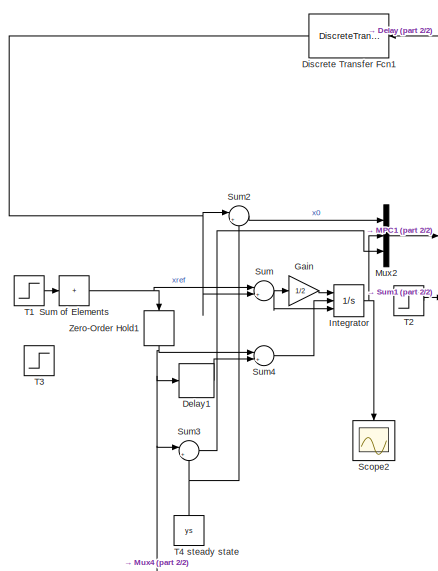
[diagram: root canvas - part 1/2, left side, full height]
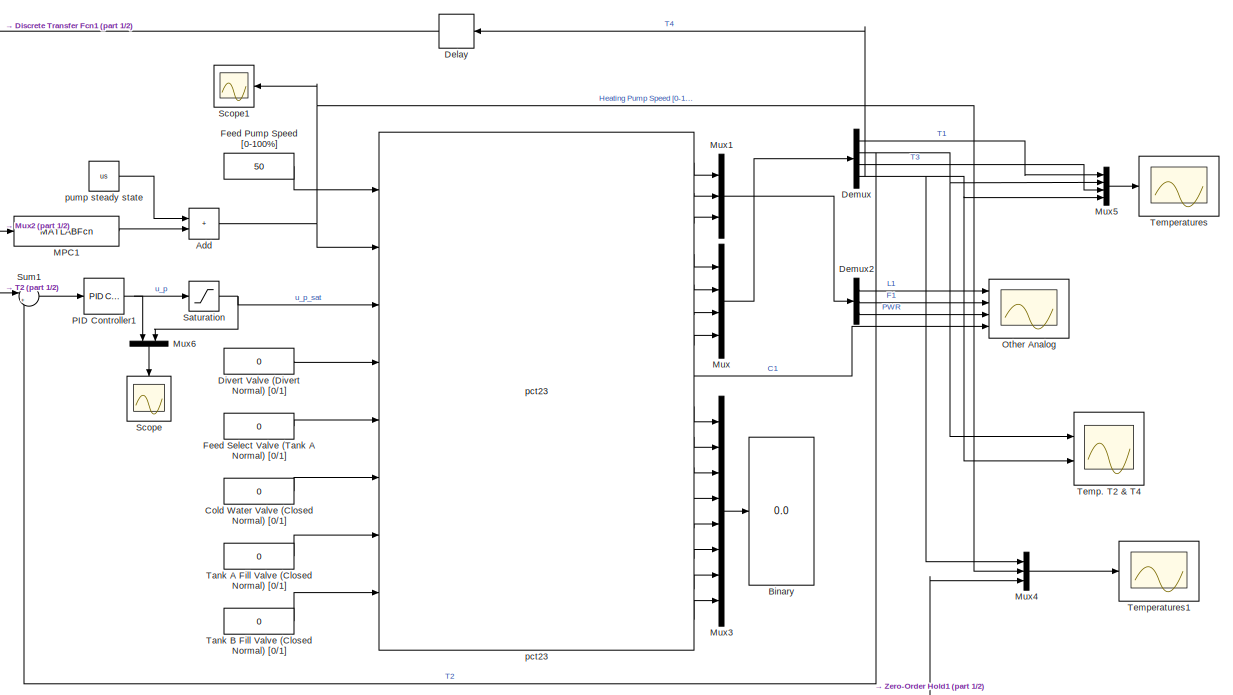
[diagram: root canvas - part 2/2, most of the canvas]
MODEL slx_e0ca52877821
KIND model
CONFIG AbsTol = auto
CONFIG EnableMultiTasking = off
CONFIG FixedStep = Ts
CONFIG MaxStep = auto
CONFIG MinStep = auto
CONFIG RelTol = 1e-3
CONFIG SampleTimeConstraint = Unconstrained
CONFIG SolverName = ode4
CONFIG StartTime = 0.0
CONFIG StopTime = 6000
BLOCK [Sum] Add
  IconShape = rectangular
  Ports = [2, 1]
BLOCK [Display] Binary
  Decimation = 1
  Ports = [1]
BLOCK [Constant] Cold Water Valve (Closed Normal) [0//1]
  Value = 0
BLOCK [Delay] Delay
  DelayLength = 1
  InitialCondition = ys
  InputPortMap = u0
  Ports = [1, 1]
  SampleTime = Ts
BLOCK [Delay] Delay1
  DelayLength = 1
  InitialCondition = ys
  InputPortMap = u0
  Ports = [1, 1]
BLOCK [Demux] Demux
  Ports = [1, 4]
BLOCK [Demux] Demux2
  Outputs = 3
  Ports = [1, 3]
BLOCK [DiscreteTransferFcn] Discrete Transfer Fcn1
  Denominator = men
  InputPortMap = u0
  NameLocation = top
  Numerator = cit
  Ports = [1, 1]
  SampleTime = Ts
BLOCK [Constant] Divert Valve (Divert Normal) [0//1]
  Value = 0
BLOCK [Constant] Feed Pump Speed [0-100%]
  Value = 50
BLOCK [Constant] Feed Select Valve (Tank A Normal) [0//1]
  Value = 0
BLOCK [Gain] Gain
  Gain = 1/2
BLOCK [Integrator] Integrator
  ExternalReset = either
  InitialConditionSource = external
  Ports = [3, 1]
BLOCK [MATLABFcn] MPC1
  MATLABFcn = MPC_fcn_yref(u(1:2),u(3))
  Ports = [1, 1]
  SampleTime = ts
BLOCK [Mux] Mux
  DisplayOption = bar
  Ports = [4, 1]
BLOCK [Mux] Mux1
  DisplayOption = bar
  Inputs = 3
  Ports = [3, 1]
BLOCK [Mux] Mux2
  DisplayOption = bar
  Inputs = 3
  Ports = [3, 1]
BLOCK [Mux] Mux3
  DisplayOption = bar
  Inputs = 8
  Ports = [8, 1]
BLOCK [Mux] Mux4
  DisplayOption = bar
  Inputs = 3
  Ports = [3, 1]
BLOCK [Mux] Mux5
  DisplayOption = bar
  Ports = [4, 1]
BLOCK [Mux] Mux6
  DisplayOption = bar
  Inputs = 2
  NameLocation = left
  Ports = [2, 1]
BLOCK [Scope] Other Analog
  Floating = off
  NumInputPorts = 4
  Ports = [4]
  ScopeSpecificationString = Simulink.scopes.TimeScopeBlockCfg('CurrentConfiguration', extmgr.ConfigurationSet(extmgr.Configuration('Core','General UI',true),extmgr.Configuration('Core','Source UI',true),extmgr.Configuration('Sources','WiredSimulink',true,'DataLoggingVariableName','ScopeData1'),extmgr.Configuration('Visuals','Time Domain',true,'SerializedDisplays',{struct('MinYLimReal','0','MaxYLimReal','1.5','YLabelReal','',...<+3834ch>
BLOCK [Reference] PID Controller1  REF=pid_lib/PID Controller
  Ports = [1, 1]
  SourceBlock = pid_lib/PID Controller
  SourceProductBaseCode = SL
  SourceType = PID 1dof
BLOCK [Saturate] Saturation
  LowerLimit = 0
  UpperLimit = 100
BLOCK [Scope] Scope
  Floating = off
  NameLocation = left
  NumInputPorts = 1
  Ports = [1]
  ScopeSpecificationString = Simulink.scopes.TimeScopeBlockCfg('CurrentConfiguration', extmgr.ConfigurationSet(extmgr.Configuration('Core','General UI',true),extmgr.Configuration('Core','Source UI',true),extmgr.Configuration('Sources','WiredSimulink',true,'DataLoggingVariableName','ScopeData2','DataLogging',true,'DataLoggingSaveFormat','Array'),extmgr.Configuration('Visuals','Time Domain',true,'SerializedDisplays',{struct('Mi...<+1452ch>
BLOCK [Scope] Scope1
  Floating = off
  NameLocation = top
  NumInputPorts = 1
  Ports = [1]
  ScopeSpecificationString = Simulink.scopes.TimeScopeBlockCfg('CurrentConfiguration', extmgr.ConfigurationSet(extmgr.Configuration('Core','General UI',true),extmgr.Configuration('Core','Source UI',true),extmgr.Configuration('Sources','WiredSimulink',true,'DataLoggingVariableName','ScopeData3','DataLogging',true,'DataLoggingSaveFormat','Array'),extmgr.Configuration('Visuals','Time Domain',true,'SerializedDisplays',{struct('Mi...<+1491ch>
BLOCK [Scope] Scope2
  Floating = off
  NameLocation = right
  NumInputPorts = 1
  Ports = [1]
  ScopeSpecificationString = Simulink.scopes.TimeScopeBlockCfg('CurrentConfiguration', extmgr.ConfigurationSet(extmgr.Configuration('Core','General UI',true),extmgr.Configuration('Core','Source UI',true),extmgr.Configuration('Sources','WiredSimulink',true,'DataLoggingVariableName','ScopeData4','DataLoggingSaveFormat','Array'),extmgr.Configuration('Visuals','Time Domain',true,'SerializedDisplays',{struct('MinYLimReal','-48.366...<+1497ch>
BLOCK [Sum] Sum
  Inputs = |+-
  Ports = [2, 1]
BLOCK [Sum] Sum of Elements
  IconShape = rectangular
  Inputs = +
  Ports = [1, 1]
BLOCK [Sum] Sum1
  Inputs = |+-
  Ports = [2, 1]
BLOCK [Sum] Sum2
  Inputs = |+-
  Ports = [2, 1]
BLOCK [Sum] Sum3
  Inputs = |+-
  Ports = [2, 1]
BLOCK [Sum] Sum4
  Inputs = |+-
  Ports = [2, 1]
BLOCK [Step] T1
  After = [ys+10, -5, -10, +5]
  Before = [ys 0 0 0]
  SampleTime = 0
  Time = [400 800 1200 1600]
BLOCK [Step] T2
  After = 71
  Before = 71
  SampleTime = 0
  Time = 0
BLOCK [Step] T3
  After = [ys+10, 5, -5, -10]
  Before = [ys 0 0 0]
  Commented = on
  SampleTime = 0
  Time = [600 1200 1800 2400]
BLOCK [Constant] T4 steady state
  NameLocation = right
  Value = ys
BLOCK [Constant] Tank A Fill Valve (Closed Normal) [0//1]
  Value = 0
BLOCK [Constant] Tank B Fill Valve (Closed Normal) [0//1]
  Value = 0
BLOCK [Scope] Temp. T2 & T4
  Floating = off
  NumInputPorts = 2
  Ports = [2]
  ScopeSpecificationString = Simulink.scopes.TimeScopeBlockCfg('CurrentConfiguration', extmgr.ConfigurationSet(extmgr.Configuration('Core','General UI',true),extmgr.Configuration('Core','Source UI',true),extmgr.Configuration('Sources','WiredSimulink',true,'DataLoggingVariableName','ScopeData5','DataLoggingSaveFormat','Array','DataLoggingLimitDataPoints',true,'DataLoggingDecimation','1'),extmgr.Configuration('Visuals','Time Do...<+2345ch>
BLOCK [Scope] Temperatures
  Floating = off
  NumInputPorts = 1
  Ports = [1]
  ScopeSpecificationString = Simulink.scopes.TimeScopeBlockCfg('CurrentConfiguration', extmgr.ConfigurationSet(extmgr.Configuration('Core','General UI',true),extmgr.Configuration('Core','Source UI',true),extmgr.Configuration('Sources','WiredSimulink',true,'DataLogging',true,'DataLoggingSaveFormat','Array','DataLoggingVariableName','ScopeData6'),extmgr.Configuration('Visuals','Time Domain',true,'SerializedDisplays',{struct('Mi...<+1558ch>
BLOCK [Scope] Temperatures1
  Floating = off
  NumInputPorts = 1
  Ports = [1]
  ScopeSpecificationString = Simulink.scopes.TimeScopeBlockCfg('CurrentConfiguration', extmgr.ConfigurationSet(extmgr.Configuration('Core','General UI',true,'DisplayFullSourceName',true),extmgr.Configuration('Core','Source UI',true),extmgr.Configuration('Sources','WiredSimulink',true,'DataLogging',true,'DataLoggingSaveFormat','Array'),extmgr.Configuration('Visuals','Time Domain',true,'SerializedDisplays',{struct('MinYLimReal'...<+1712ch>
BLOCK [ZeroOrderHold] Zero-Order Hold1
  NameLocation = left
  SampleTime = ts
BLOCK [Reference] pct23  REF=pct23_lib/pct23  (lib defined in slx_2960d62a0908)
  Ports = [8, 16]
  SourceBlock = pct23_lib/pct23
  SourceType = SubSystem
BLOCK [Constant] pump steady state
  Value = us
NET Add:1 -> Mux4:2, Scope1:1, pct23:2
LINE Cold Water Valve (Closed Normal) [0//1]:1 -> pct23:6
LINE Delay1:1 -> Sum4:2
LINE Delay:1 -> Discrete Transfer Fcn1:1
LINE Demux2:1 -> Other Analog:1
LINE Demux2:2 -> Other Analog:2
LINE Demux2:3 -> Other Analog:3
LINE Demux:1 -> Mux5:1
NET Demux:2 -> Mux5:2, Sum1:2, Temp. T2 & T4:1
LINE Demux:3 -> Mux5:3
NET Demux:4 -> Delay:1, Mux4:1, Mux5:4, Temp. T2 & T4:2
NET Discrete Transfer Fcn1:1 -> Sum2:1, Sum:2
LINE Divert Valve (Divert Normal) [0//1]:1 -> pct23:4
LINE Feed Pump Speed [0-100%]:1 -> pct23:1
LINE Feed Select Valve (Tank A Normal) [0//1]:1 -> pct23:5
LINE Gain:1 -> Integrator:1
NET Integrator:1 -> Mux2:2, Scope2:1
LINE MPC1:1 -> Add:2
LINE Mux1:1 -> Demux2:1
LINE Mux2:1 -> MPC1:1
LINE Mux3:1 -> Binary:1
LINE Mux4:1 -> Temperatures1:1
LINE Mux5:1 -> Temperatures:1
LINE Mux6:1 -> Scope:1
LINE Mux:1 -> Demux:1
NET PID Controller1:1 -> Mux6:1, Saturation:1
NET Saturation:1 -> Mux6:2, pct23:3
NET Sum of Elements:1 -> Sum:1, Zero-Order Hold1:1
LINE Sum1:1 -> PID Controller1:1
LINE Sum2:1 -> Mux2:1
LINE Sum3:1 -> Mux2:3
LINE Sum4:1 -> Integrator:2
NET Sum:1 -> Gain:1, Integrator:3
LINE T1:1 -> Sum of Elements:1
LINE T2:1 -> Sum1:1
NET T4 steady state:1 -> Sum2:2, Sum3:2
LINE Tank A Fill Valve (Closed Normal) [0//1]:1 -> pct23:7
LINE Tank B Fill Valve (Closed Normal) [0//1]:1 -> pct23:8
NET Zero-Order Hold1:1 -> Delay1:1, Mux4:3, Sum3:1, Sum4:1
LINE pct23:1 -> Mux1:1
LINE pct23:10 -> Mux3:2
LINE pct23:11 -> Mux3:3
LINE pct23:12 -> Mux3:4
LINE pct23:13 -> Mux3:5
LINE pct23:14 -> Mux3:6
LINE pct23:15 -> Mux3:7
LINE pct23:16 -> Mux3:8
LINE pct23:2 -> Mux1:2
LINE pct23:3 -> Mux1:3
LINE pct23:4 -> Mux:1
LINE pct23:5 -> Mux:2
LINE pct23:6 -> Mux:3
LINE pct23:7 -> Mux:4
LINE pct23:8 -> Other Analog:4
LINE pct23:9 -> Mux3:1
LINE pump steady state:1 -> Add:1
note: NET lines group one-source signal fan-out (src -> all destinations, sorted); 1:1 wires keep LINE
